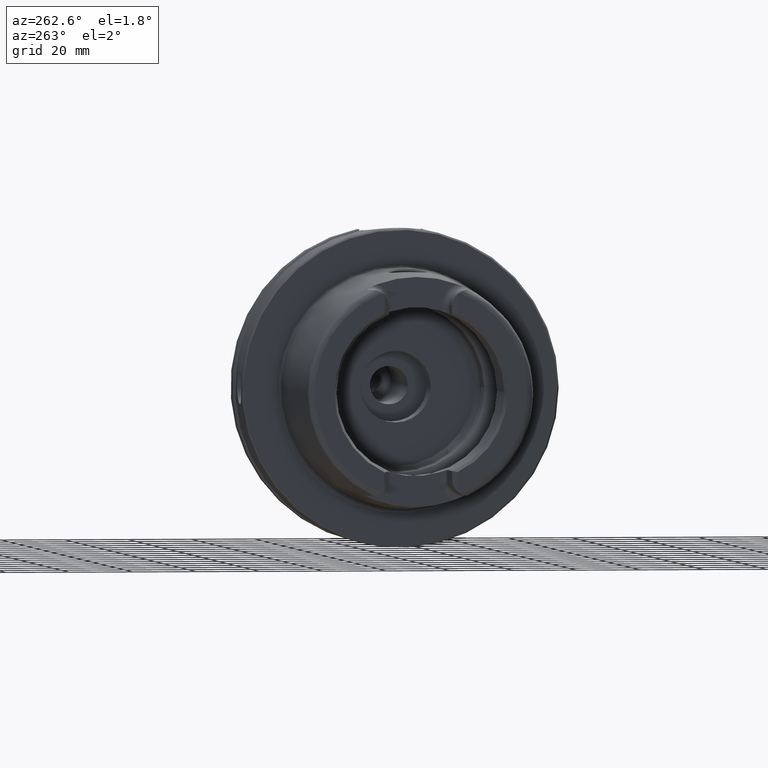
[diagram: clean part render]
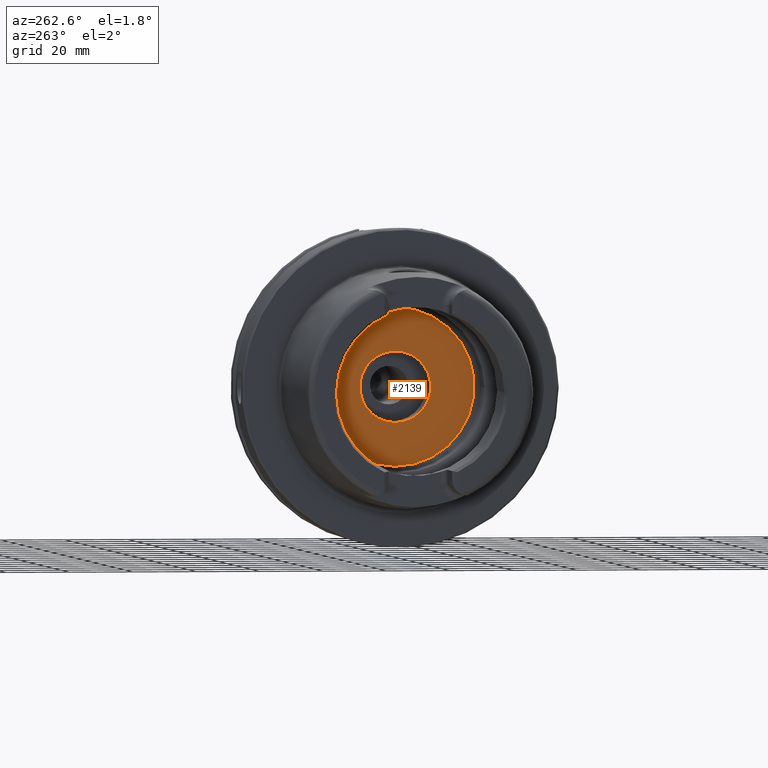
[diagram: same view with one face highlighted and labeled with its STEP entity id]
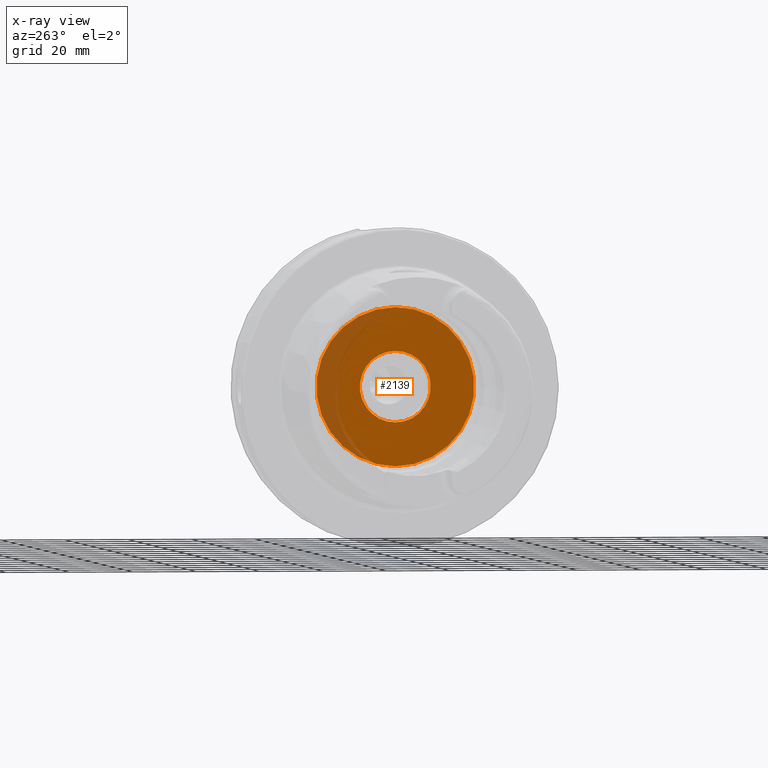
[diagram: x-ray of the same camera — body ghosted, the highlighted face saturated]
A machine part, auxiliary view. The second image highlights one B-rep face of the part: STEP entity #2139.
The next image is the same camera in x-ray: the body ghosted, the highlighted face saturated — about 19% of this face is hidden behind the body in this view.
In plain terms, the highlighted planar face has unit normal (1, 0, 0).
Its self-contained STEP definition (entity closure, byte-faithful):
#96=FACE_BOUND('',#452,.T.);
#132=PLANE('',#2412);
#317=FACE_OUTER_BOUND('',#451,.T.);
#451=EDGE_LOOP('',(#1937));
#452=EDGE_LOOP('',(#1938));
#799=CIRCLE('',#2401,11.188101);
#806=CIRCLE('',#2413,24.9);
#1021=VERTEX_POINT('',#4567);
#1027=VERTEX_POINT('',#4587);
#1329=EDGE_CURVE('',#1021,#1021,#799,.T.);
#1338=EDGE_CURVE('',#1027,#1027,#806,.T.);
#1937=ORIENTED_EDGE('',*,*,#1338,.T.);
#1938=ORIENTED_EDGE('',*,*,#1329,.T.);
#2139=ADVANCED_FACE('',(#317,#96),#132,.F.);
#2401=AXIS2_PLACEMENT_3D('',#4568,#2995,#2996);
#2412=AXIS2_PLACEMENT_3D('',#4586,#3019,#3020);
#2413=AXIS2_PLACEMENT_3D('',#4588,#3021,#3022);
#2995=DIRECTION('center_axis',(1.,0.,0.));
#2996=DIRECTION('ref_axis',(0.,0.,1.));
#3019=DIRECTION('center_axis',(1.,0.,0.));
#3020=DIRECTION('ref_axis',(0.,0.,-1.));
#3021=DIRECTION('center_axis',(-1.,0.,0.));
#3022=DIRECTION('ref_axis',(0.,0.,1.));
#4567=CARTESIAN_POINT('',(12.5,-1.37014720781873E-15,-11.188101));
#4568=CARTESIAN_POINT('Origin',(12.5,0.,0.));
#4586=CARTESIAN_POINT('Origin',(12.5,24.9,0.));
#4587=CARTESIAN_POINT('',(12.5,-3.04937052987691E-15,-24.9));
#4588=CARTESIAN_POINT('Origin',(12.5,0.,0.));